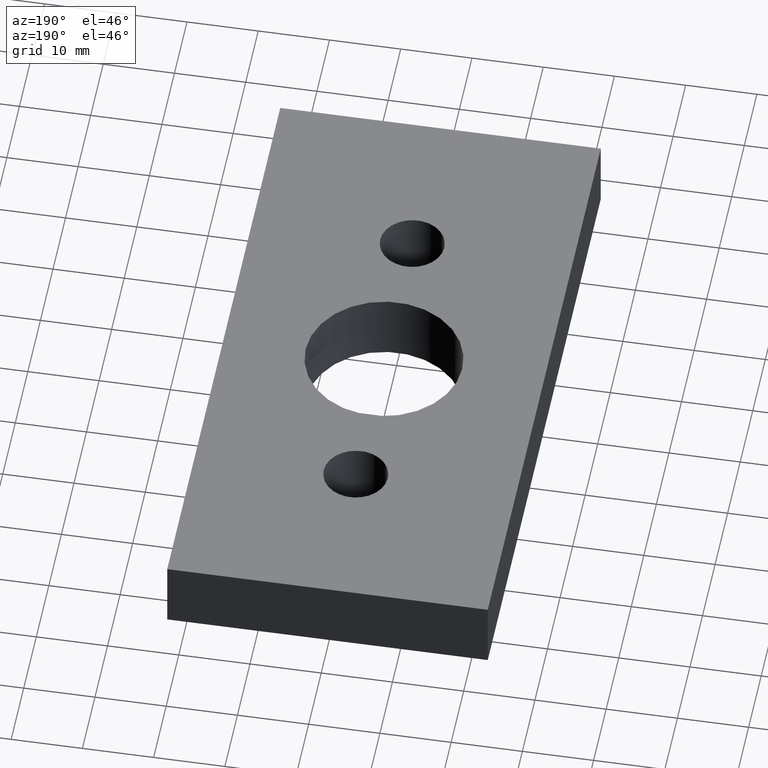
[diagram: clean part render]
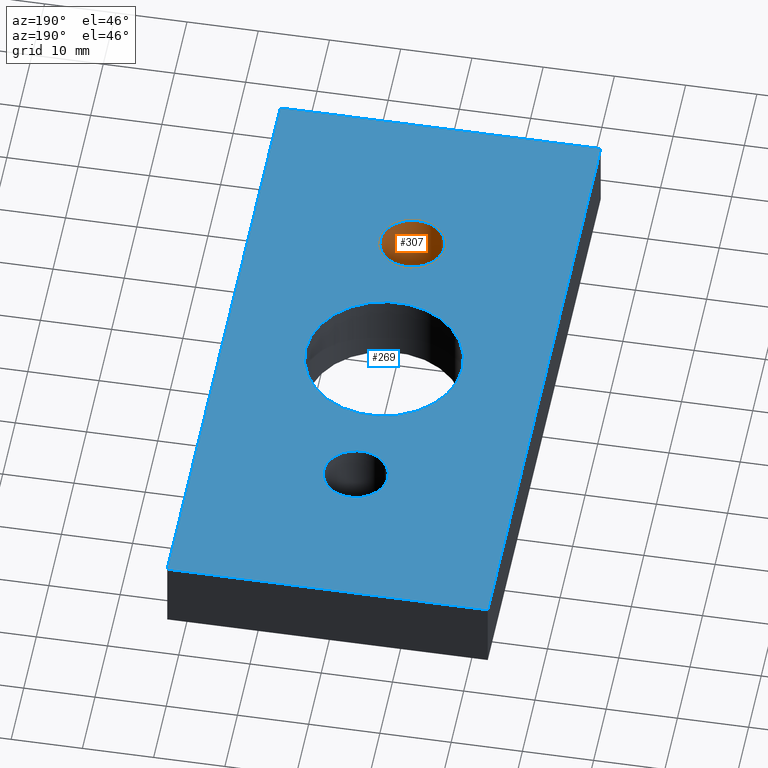
[diagram: same view with the hole feature highlighted: cylindrical wall and planar end face, labeled with their STEP entity ids]
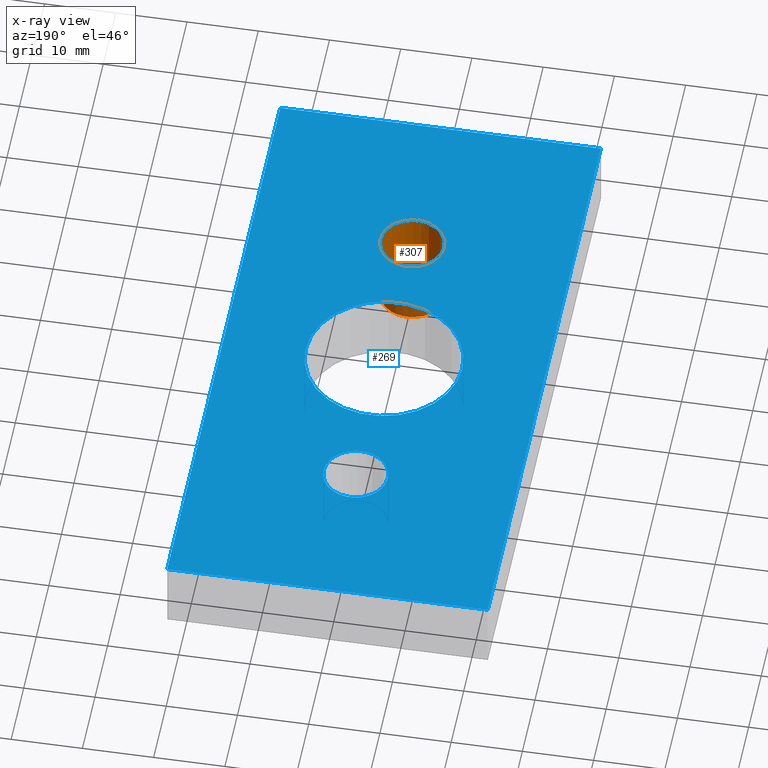
[diagram: x-ray of the same camera — body ghosted, the hole faces saturated]
A machine part, auxiliary view. The highlighted faces form one hole feature of diameter 9 mm: the cylindrical wall (entity #307, orange) and its adjacent planar end face (entity #269, blue) — they share a circular edge in the B-rep.
The next image is the same camera in x-ray (body ghosted, the hole faces saturated) — the bore reads through the body.
Wall:
#157=CARTESIAN_POINT('',(-4.500000000000000,-22.500000000000000,0.0));
#158=VERTEX_POINT('',#157);
#159=CARTESIAN_POINT('',(4.500000000000000,-22.500000000000000,0.0));
#160=VERTEX_POINT('',#159);
#161=CARTESIAN_POINT('',(0.0,-22.500000000000000,0.0));
#162=DIRECTION('',(0.0,0.0,-1.0));
#163=DIRECTION('',(1.0,0.0,0.0));
#164=AXIS2_PLACEMENT_3D('',#161,#162,#163);
#165=CIRCLE('',#164,4.500000000000000);
#166=EDGE_CURVE('',#158,#160,#165,.T.);
#168=CARTESIAN_POINT('',(0.0,-22.500000000000000,0.0));
#169=DIRECTION('',(0.0,0.0,-1.0));
#170=DIRECTION('',(1.0,0.0,0.0));
#171=AXIS2_PLACEMENT_3D('',#168,#169,#170);
#172=CIRCLE('',#171,4.500000000000000);
#173=EDGE_CURVE('',#160,#158,#172,.T.);
#229=CARTESIAN_POINT('',(-4.500000000000000,-22.500000000000000,10.0));
#230=VERTEX_POINT('',#229);
#231=CARTESIAN_POINT('',(4.500000000000000,-22.500000000000000,10.0));
#232=VERTEX_POINT('',#231);
#233=CARTESIAN_POINT('',(0.0,-22.500000000000000,10.0));
#234=DIRECTION('',(0.0,0.0,1.0));
#235=DIRECTION('',(1.0,0.0,0.0));
#236=AXIS2_PLACEMENT_3D('',#233,#234,#235);
#237=CIRCLE('',#236,4.500000000000000);
#238=EDGE_CURVE('',#230,#232,#237,.T.);
#240=CARTESIAN_POINT('',(0.0,-22.500000000000000,10.0));
#241=DIRECTION('',(0.0,0.0,1.0));
#242=DIRECTION('',(1.0,0.0,0.0));
#243=AXIS2_PLACEMENT_3D('',#240,#241,#242);
#244=CIRCLE('',#243,4.500000000000000);
#245=EDGE_CURVE('',#232,#230,#244,.T.);
#289=CARTESIAN_POINT('',(0.0,-22.500000000000000,10.0));
#290=DIRECTION('',(0.0,0.0,1.0));
#291=DIRECTION('',(1.0,0.0,0.0));
#292=AXIS2_PLACEMENT_3D('',#289,#290,#291);
#293=CYLINDRICAL_SURFACE('',#292,4.500000000000000);
#294=CARTESIAN_POINT('',(4.500000000000000,-22.500000000000000,10.0));
#295=DIRECTION('',(0.0,0.0,-1.0));
#296=VECTOR('',#295,10.0);
#297=LINE('',#294,#296);
#298=EDGE_CURVE('',#232,#160,#297,.T.);
#299=ORIENTED_EDGE('',*,*,#298,.T.);
#300=ORIENTED_EDGE('',*,*,#173,.T.);
#301=ORIENTED_EDGE('',*,*,#166,.T.);
#302=ORIENTED_EDGE('',*,*,#298,.F.);
#303=ORIENTED_EDGE('',*,*,#245,.T.);
#304=ORIENTED_EDGE('',*,*,#238,.T.);
#305=EDGE_LOOP('',(#299,#300,#301,#302,#303,#304));
#306=FACE_OUTER_BOUND('',#305,.T.);
#307=ADVANCED_FACE('',(#306),#293,.F.);
End face:
#17=CARTESIAN_POINT('',(-22.499999999999993,45.0,10.0));
#18=VERTEX_POINT('',#17);
#25=CARTESIAN_POINT('',(22.500000000000007,45.0,10.0));
#26=VERTEX_POINT('',#25);
#27=CARTESIAN_POINT('',(22.500000000000007,45.0,10.0));
#28=DIRECTION('',(-1.0,0.0,0.0));
#29=VECTOR('',#28,45.0);
#30=LINE('',#27,#29);
#31=EDGE_CURVE('',#26,#18,#30,.T.);
#55=CARTESIAN_POINT('',(-22.499999999999993,-45.0,10.0));
#56=VERTEX_POINT('',#55);
#63=CARTESIAN_POINT('',(-22.499999999999993,45.0,10.0));
#64=DIRECTION('',(0.0,-1.0,0.0));
#65=VECTOR('',#64,90.0);
#66=LINE('',#63,#65);
#67=EDGE_CURVE('',#18,#56,#66,.T.);
#86=CARTESIAN_POINT('',(22.499999999999993,-45.0,10.0));
#87=VERTEX_POINT('',#86);
#94=CARTESIAN_POINT('',(-22.499999999999993,-45.0,10.0));
#95=DIRECTION('',(1.0,0.0,0.0));
#96=VECTOR('',#95,44.999999999999986);
#97=LINE('',#94,#96);
#98=EDGE_CURVE('',#56,#87,#97,.T.);
#116=CARTESIAN_POINT('',(22.499999999999993,-45.0,10.0));
#117=DIRECTION('',(0.0,1.0,0.0));
#118=VECTOR('',#117,90.0);
#119=LINE('',#116,#118);
#120=EDGE_CURVE('',#87,#26,#119,.T.);
#198=CARTESIAN_POINT('',(-27.000001269169182,-54.000001269152264,10.0));
#199=DIRECTION('',(0.0,0.0,1.0));
#200=DIRECTION('',(1.0,0.0,0.0));
#201=AXIS2_PLACEMENT_3D('',#198,#199,#200);
#202=PLANE('',#201);
#203=ORIENTED_EDGE('',*,*,#31,.T.);
#204=ORIENTED_EDGE('',*,*,#67,.T.);
#205=ORIENTED_EDGE('',*,*,#98,.T.);
#206=ORIENTED_EDGE('',*,*,#120,.T.);
#207=EDGE_LOOP('',(#203,#204,#205,#206));
#208=FACE_OUTER_BOUND('',#207,.T.);
#209=CARTESIAN_POINT('',(-11.0,0.0,10.0));
#210=VERTEX_POINT('',#209);
#211=CARTESIAN_POINT('',(11.0,0.0,10.0));
#212=VERTEX_POINT('',#211);
#213=CARTESIAN_POINT('',(0.0,0.0,10.0));
#214=DIRECTION('',(0.0,0.0,1.0));
#215=DIRECTION('',(1.0,0.0,0.0));
#216=AXIS2_PLACEMENT_3D('',#213,#214,#215);
#217=CIRCLE('',#216,11.0);
#218=EDGE_CURVE('',#210,#212,#217,.T.);
#219=ORIENTED_EDGE('',*,*,#218,.F.);
#220=CARTESIAN_POINT('',(0.0,0.0,10.0));
#221=DIRECTION('',(0.0,0.0,1.0));
#222=DIRECTION('',(1.0,0.0,0.0));
#223=AXIS2_PLACEMENT_3D('',#220,#221,#222);
#224=CIRCLE('',#223,11.0);
#225=EDGE_CURVE('',#212,#210,#224,.T.);
#226=ORIENTED_EDGE('',*,*,#225,.F.);
#227=EDGE_LOOP('',(#219,#226));
#228=FACE_BOUND('',#227,.T.);
#229=CARTESIAN_POINT('',(-4.500000000000000,-22.500000000000000,10.0));
#230=VERTEX_POINT('',#229);
#231=CARTESIAN_POINT('',(4.500000000000000,-22.500000000000000,10.0));
#232=VERTEX_POINT('',#231);
#233=CARTESIAN_POINT('',(0.0,-22.500000000000000,10.0));
#234=DIRECTION('',(0.0,0.0,1.0));
#235=DIRECTION('',(1.0,0.0,0.0));
#236=AXIS2_PLACEMENT_3D('',#233,#234,#235);
#237=CIRCLE('',#236,4.500000000000000);
#238=EDGE_CURVE('',#230,#232,#237,.T.);
#239=ORIENTED_EDGE('',*,*,#238,.F.);
#240=CARTESIAN_POINT('',(0.0,-22.500000000000000,10.0));
#241=DIRECTION('',(0.0,0.0,1.0));
#242=DIRECTION('',(1.0,0.0,0.0));
#243=AXIS2_PLACEMENT_3D('',#240,#241,#242);
#244=CIRCLE('',#243,4.500000000000000);
#245=EDGE_CURVE('',#232,#230,#244,.T.);
#246=ORIENTED_EDGE('',*,*,#245,.F.);
#247=EDGE_LOOP('',(#239,#246));
#248=FACE_BOUND('',#247,.T.);
#249=CARTESIAN_POINT('',(-4.500000000000021,22.499999999999986,10.0));
#250=VERTEX_POINT('',#249);
#251=CARTESIAN_POINT('',(4.499999999999979,22.499999999999986,10.0));
#252=VERTEX_POINT('',#251);
#253=CARTESIAN_POINT('',(-2.131628E-014,22.499999999999986,10.0));
#254=DIRECTION('',(0.0,0.0,1.0));
#255=DIRECTION('',(1.0,0.0,0.0));
#256=AXIS2_PLACEMENT_3D('',#253,#254,#255);
#257=CIRCLE('',#256,4.500000000000000);
#258=EDGE_CURVE('',#250,#252,#257,.T.);
#259=ORIENTED_EDGE('',*,*,#258,.F.);
#260=CARTESIAN_POINT('',(-2.131628E-014,22.499999999999986,10.0));
#261=DIRECTION('',(0.0,0.0,1.0));
#262=DIRECTION('',(1.0,0.0,0.0));
#263=AXIS2_PLACEMENT_3D('',#260,#261,#262);
#264=CIRCLE('',#263,4.500000000000000);
#265=EDGE_CURVE('',#252,#250,#264,.T.);
#266=ORIENTED_EDGE('',*,*,#265,.F.);
#267=EDGE_LOOP('',(#259,#266));
#268=FACE_BOUND('',#267,.T.);
#269=ADVANCED_FACE('',(#208,#228,#248,#268),#202,.T.);